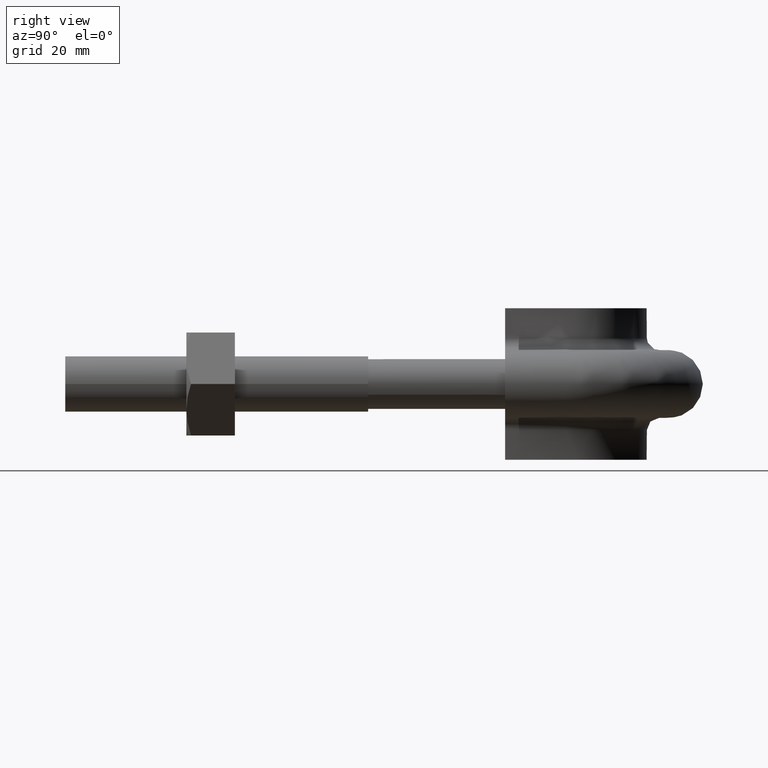
[diagram: clean part render]
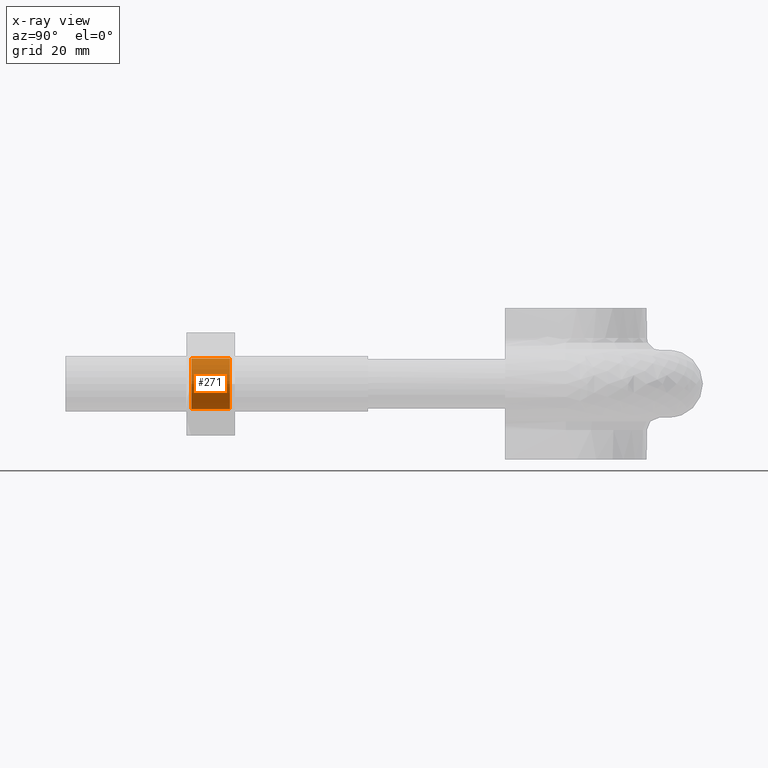
[diagram: x-ray — body ghosted, one internal face saturated and labeled with its STEP entity id]
A machine part, right view, then the same camera in x-ray: the body is ghosted and one INTERNAL B-rep face — a face not visible from any outside direction — is saturated and labeled: STEP entity #271.
In plain terms, the highlighted cylindrical surface (bore or boss wall) has radius 4.188 mm, axis along (0, 1, -0).
Its self-contained STEP definition (entity closure, byte-faithful):
#271 = ADVANCED_FACE( '', ( #414, #415 ), #416, .F. );
#414 = FACE_OUTER_BOUND( '', #1493, .T. );
#415 = FACE_OUTER_BOUND( '', #1494, .T. );
#416 = CYLINDRICAL_SURFACE( '', #1495, 4.18800000000000 );
#1493 = EDGE_LOOP( '', ( #1909 ) );
#1494 = EDGE_LOOP( '', ( #1910 ) );
#1495 = AXIS2_PLACEMENT_3D( '', #1911, #1912, #1913 );
#1909 = ORIENTED_EDGE( '', *, *, #2186, .F. );
#1910 = ORIENTED_EDGE( '', *, *, #2155, .T. );
#1911 = CARTESIAN_POINT( '', ( -17.0000000000000, 28.0000000000000, -8.81402156122091E-015 ) );
#1912 = DIRECTION( '', ( 2.44921270764476E-016, 1.00000000000000, -3.06151588455594E-016 ) );
#1913 = DIRECTION( '', ( -0.866025403784439, 3.65183836637000E-016, 0.500000000000000 ) );
#2155 = EDGE_CURVE( '', #2355, #2355, #2356, .T. );
#2186 = EDGE_CURVE( '', #2401, #2401, #2402, .F. );
#2355 = VERTEX_POINT( '', #2845 );
#2356 = CIRCLE( '', #2846, 4.18800000000000 );
#2401 = VERTEX_POINT( '', #2927 );
#2402 = CIRCLE( '', #2928, 4.18800000000000 );
#2845 = CARTESIAN_POINT( '', ( -17.0000000000000, 27.1880000000000, 4.18799999999999 ) );
#2846 = AXIS2_PLACEMENT_3D( '', #3184, #3185, #3186 );
#2927 = CARTESIAN_POINT( '', ( -17.0000000000000, 20.8120000000000, -4.18800000000001 ) );
#2928 = AXIS2_PLACEMENT_3D( '', #3240, #3241, #3242 );
#3184 = CARTESIAN_POINT( '', ( -17.0000000000000, 27.1880000000000, -8.56542647139497E-015 ) );
#3185 = DIRECTION( '', ( 2.44921270764475E-016, 1.00000000000000, -3.06151588455594E-016 ) );
#3186 = DIRECTION( '', ( 0.000000000000000, 3.06151588455594E-016, 1.00000000000000 ) );
#3240 = CARTESIAN_POINT( '', ( -17.0000000000000, 20.8120000000000, -6.61340394340210E-015 ) );
#3241 = DIRECTION( '', ( -2.44921270764476E-016, -1.00000000000000, 3.06151588455594E-016 ) );
#3242 = DIRECTION( '', ( 0.000000000000000, -3.06151588455594E-016, -1.00000000000000 ) );